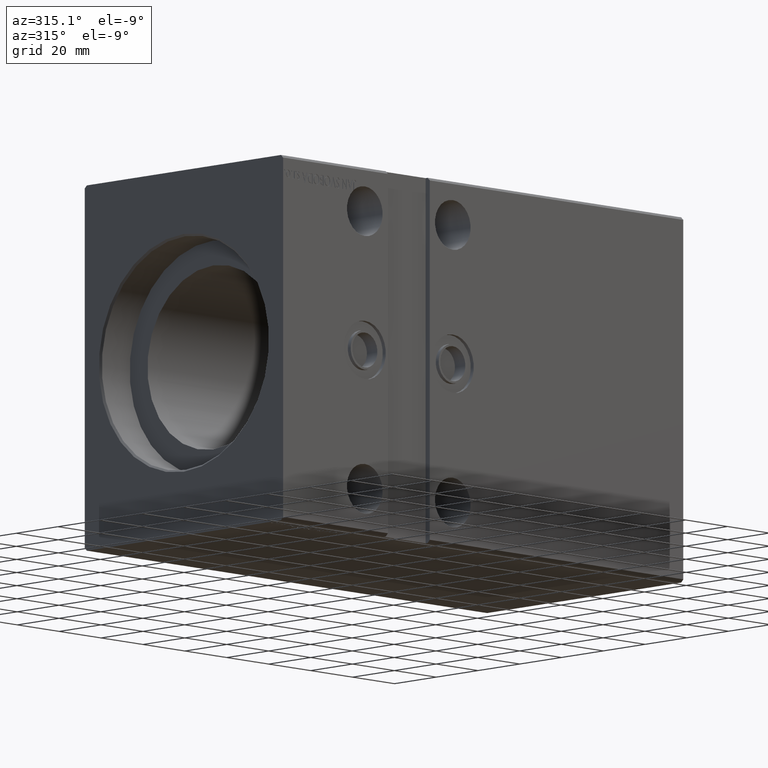
[diagram: clean part render]
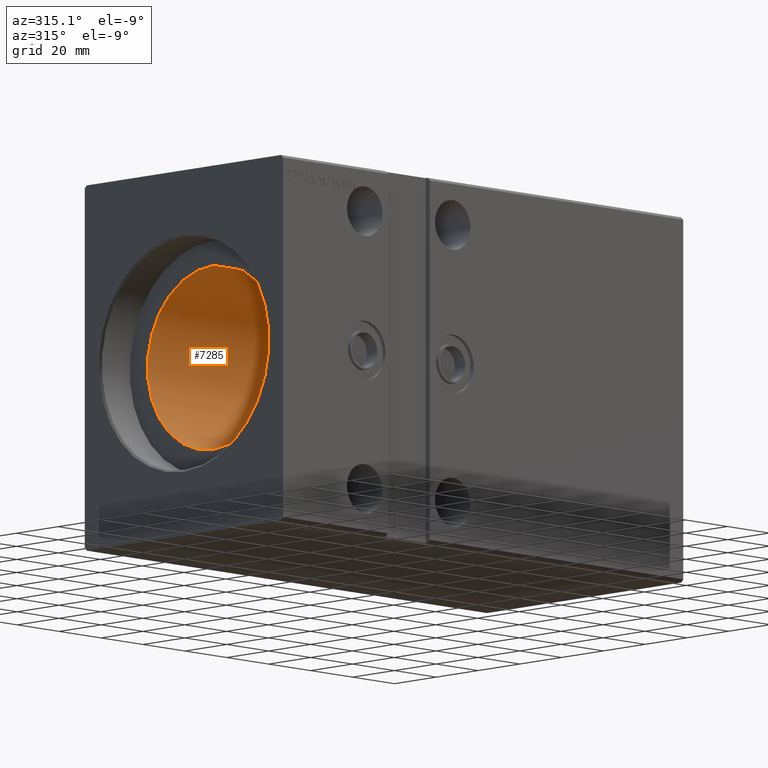
[diagram: same view with one face highlighted and labeled with its STEP entity id]
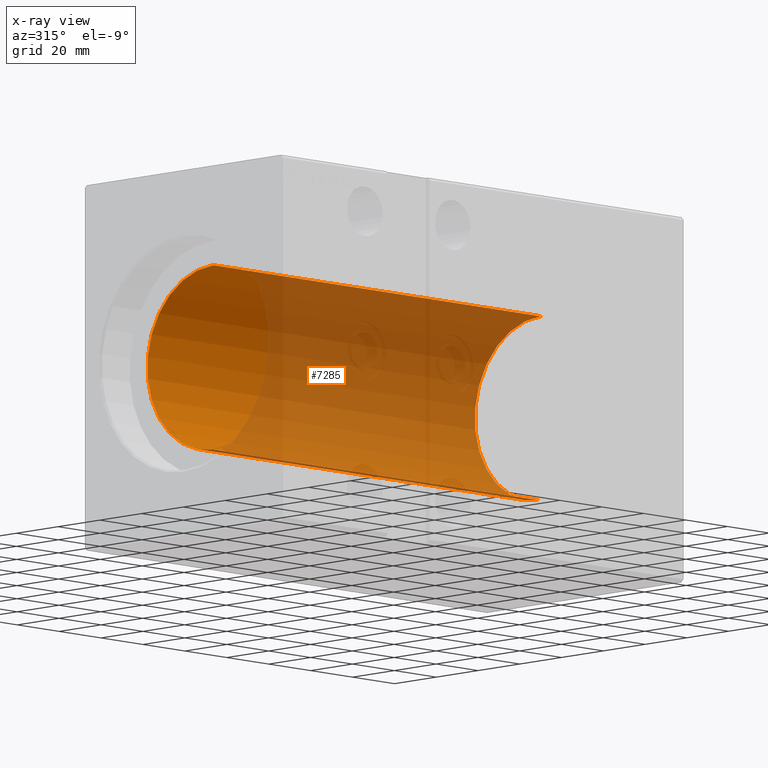
[diagram: x-ray of the same camera — body ghosted, the highlighted face saturated]
A machine part, auxiliary view. The second image highlights one B-rep face of the part: STEP entity #7285.
The next image is the same camera in x-ray: the body ghosted, the highlighted face saturated — about 71% of this face is hidden behind the body in this view.
In plain terms, the highlighted cylindrical surface (partial cylindrical patch) has radius 31.5 mm, axis along (-1, -0, -0).
Its self-contained STEP definition (entity closure, byte-faithful):
#257 = VERTEX_POINT ( 'NONE', #34329 ) ;
#1511 = DIRECTION ( 'NONE',  ( -1.000000000000000000, -0.000000000000000000, -0.000000000000000000 ) ) ;
#2040 = EDGE_LOOP ( 'NONE', ( #41744, #38238, #34399, #8875 ) ) ;
#2104 = EDGE_CURVE ( 'NONE', #26449, #257, #18782, .T. ) ;
#6093 = CARTESIAN_POINT ( 'NONE',  ( 14.00000000000001243, 3.857637417314162689E-15, -31.50000000000000000 ) ) ;
#6567 = VECTOR ( 'NONE', #1511, 1000.000000000000000 ) ;
#7285 = ADVANCED_FACE ( 'NONE', ( #18771 ), #31730, .F. ) ;
#7358 = DIRECTION ( 'NONE',  ( 0.000000000000000000, 0.000000000000000000, 1.000000000000000000 ) ) ;
#8875 = ORIENTED_EDGE ( 'NONE', *, *, #36339, .T. ) ;
#9249 = AXIS2_PLACEMENT_3D ( 'NONE', #40683, #11591, #7358 ) ;
#11591 = DIRECTION ( 'NONE',  ( -1.000000000000000000, 0.000000000000000000, 0.000000000000000000 ) ) ;
#12765 = EDGE_CURVE ( 'NONE', #26449, #27916, #20855, .T. ) ;
#12771 = CARTESIAN_POINT ( 'NONE',  ( 170.1999999999999886, 3.857637417314162689E-15, -31.50000000000000000 ) ) ;
#16088 = EDGE_CURVE ( 'NONE', #257, #20161, #18522, .T. ) ;
#17828 = CIRCLE ( 'NONE', #39531, 31.50000000000000000 ) ;
#18522 = LINE ( 'NONE', #12771, #21573 ) ;
#18771 = FACE_OUTER_BOUND ( 'NONE', #2040, .T. ) ;
#18782 = CIRCLE ( 'NONE', #9249, 31.50000000000000000 ) ;
#20161 = VERTEX_POINT ( 'NONE', #6093 ) ;
#20855 = LINE ( 'NONE', #40797, #6567 ) ;
#21573 = VECTOR ( 'NONE', #41658, 1000.000000000000000 ) ;
#24929 = CARTESIAN_POINT ( 'NONE',  ( 170.1999999999999886, 0.000000000000000000, 0.000000000000000000 ) ) ;
#25142 = DIRECTION ( 'NONE',  ( -1.000000000000000000, -0.000000000000000000, -0.000000000000000000 ) ) ;
#26449 = VERTEX_POINT ( 'NONE', #31908 ) ;
#27916 = VERTEX_POINT ( 'NONE', #38419 ) ;
#28826 = CARTESIAN_POINT ( 'NONE',  ( 14.00000000000001243, 0.000000000000000000, 0.000000000000000000 ) ) ;
#28831 = AXIS2_PLACEMENT_3D ( 'NONE', #24929, #25142, #37675 ) ;
#31730 = CYLINDRICAL_SURFACE ( 'NONE', #28831, 31.50000000000000000 ) ;
#31908 = CARTESIAN_POINT ( 'NONE',  ( 170.1999999999999886, 0.000000000000000000, 31.50000000000000000 ) ) ;
#34329 = CARTESIAN_POINT ( 'NONE',  ( 170.1999999999999886, 3.857637417314162689E-15, -31.50000000000000000 ) ) ;
#34399 = ORIENTED_EDGE ( 'NONE', *, *, #12765, .T. ) ;
#36339 = EDGE_CURVE ( 'NONE', #27916, #20161, #17828, .T. ) ;
#37675 = DIRECTION ( 'NONE',  ( 0.000000000000000000, 0.000000000000000000, 1.000000000000000000 ) ) ;
#38238 = ORIENTED_EDGE ( 'NONE', *, *, #2104, .F. ) ;
#38419 = CARTESIAN_POINT ( 'NONE',  ( 14.00000000000001243, 0.000000000000000000, 31.50000000000000000 ) ) ;
#39531 = AXIS2_PLACEMENT_3D ( 'NONE', #28826, #41353, #41782 ) ;
#40683 = CARTESIAN_POINT ( 'NONE',  ( 170.1999999999999886, 0.000000000000000000, 0.000000000000000000 ) ) ;
#40797 = CARTESIAN_POINT ( 'NONE',  ( 170.1999999999999886, 0.000000000000000000, 31.50000000000000000 ) ) ;
#41353 = DIRECTION ( 'NONE',  ( -1.000000000000000000, 0.000000000000000000, 0.000000000000000000 ) ) ;
#41658 = DIRECTION ( 'NONE',  ( -1.000000000000000000, -0.000000000000000000, -0.000000000000000000 ) ) ;
#41744 = ORIENTED_EDGE ( 'NONE', *, *, #16088, .F. ) ;
#41782 = DIRECTION ( 'NONE',  ( 0.000000000000000000, 0.000000000000000000, 1.000000000000000000 ) ) ;